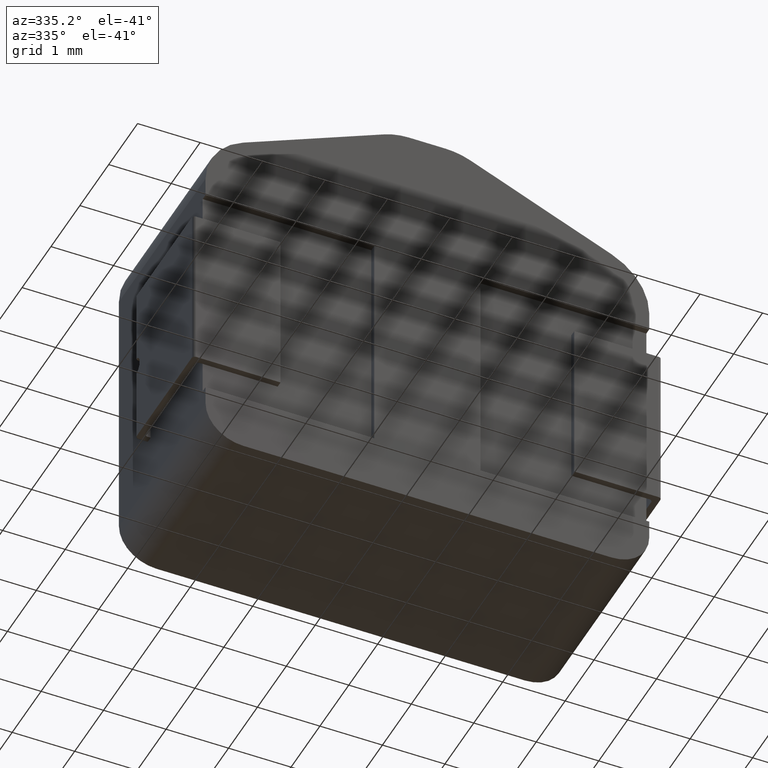
[diagram: clean part render]
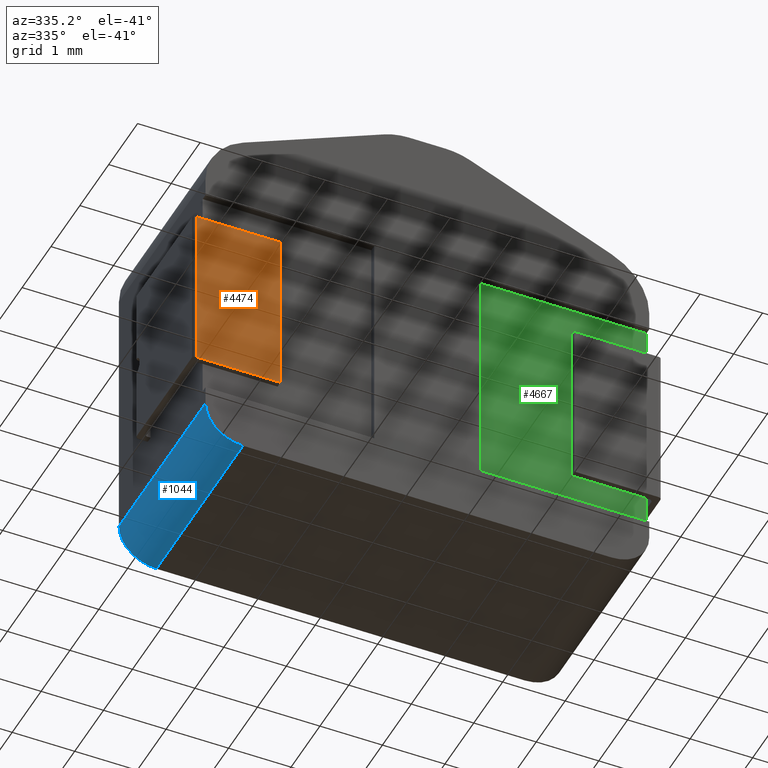
[diagram: same view with three faces highlighted in distinct colors, each labeled with its STEP entity id]
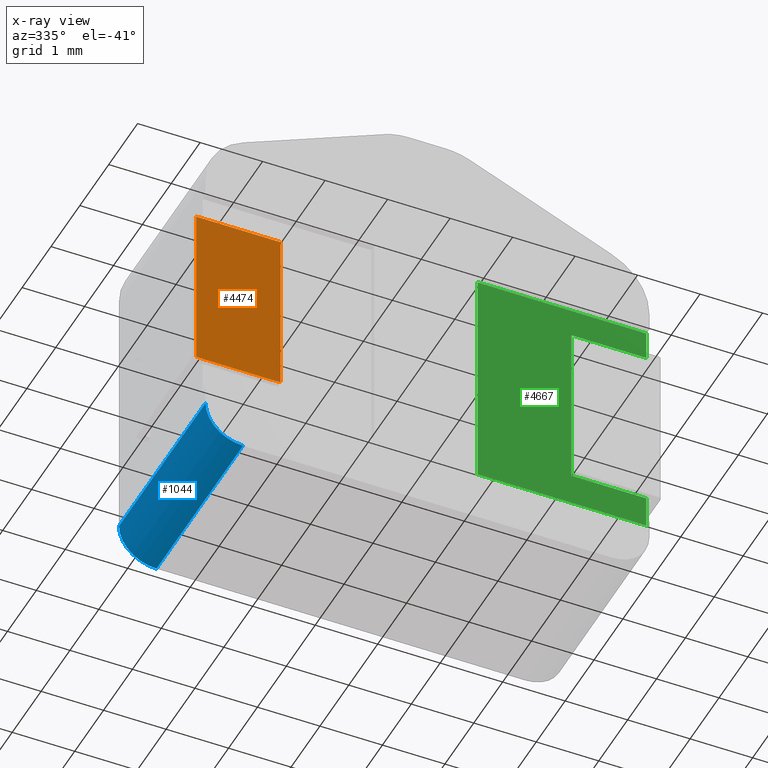
[diagram: x-ray of the same camera — body ghosted, the three highlighted faces saturated]
A machine part, auxiliary view with three faces highlighted in distinct colors.
The next image is the same camera in x-ray (body ghosted, the three faces saturated) — at least one of them is partly hidden behind the body in this view.
Their STEP definitions:

[orange] entity #4474 — the highlighted planar face has unit normal (0, -1, 0).
#47 = ORIENTED_EDGE ( 'NONE', *, *, #164, .T. ) ;
#164 = EDGE_CURVE ( 'NONE', #2870, #2147, #4571, .T. ) ;
#507 = AXIS2_PLACEMENT_3D ( 'NONE', #2388, #3139, #850 ) ;
#515 = EDGE_CURVE ( 'NONE', #1594, #4722, #4800, .T. ) ;
#774 = DIRECTION ( 'NONE',  ( 1.000000000000000000, 8.597901537443017800E-033, 0.0000000000000000000 ) ) ;
#810 = ORIENTED_EDGE ( 'NONE', *, *, #2755, .T. ) ;
#850 = DIRECTION ( 'NONE',  ( 1.000000000000000000, 8.597901537443019200E-033, 0.0000000000000000000 ) ) ;
#881 = CARTESIAN_POINT ( 'NONE',  ( 0.05948966275330278700, 1.203706215242022400E-032, -5.140528836854994000 ) ) ;
#895 = PLANE ( 'NONE',  #507 ) ;
#974 = DIRECTION ( 'NONE',  ( -0.0000000000000000000, -0.0000000000000000000, -1.000000000000000000 ) ) ;
#1223 = CARTESIAN_POINT ( 'NONE',  ( 0.05948966275330278700, 1.203706215242022400E-032, -5.140528836854994000 ) ) ;
#1228 = DIRECTION ( 'NONE',  ( 1.000000000000000000, 8.597901537443017800E-033, 0.0000000000000000000 ) ) ;
#1475 = CARTESIAN_POINT ( 'NONE',  ( -1.290510337246697300, 4.298950768721501900E-034, -5.140528836854994000 ) ) ;
#1487 = VECTOR ( 'NONE', #974, 1000.000000000000000 ) ;
#1594 = VERTEX_POINT ( 'NONE', #1223 ) ;
#2147 = VERTEX_POINT ( 'NONE', #1475 ) ;
#2302 = ORIENTED_EDGE ( 'NONE', *, *, #515, .T. ) ;
#2316 = CARTESIAN_POINT ( 'NONE',  ( -1.340510337246697100, 0.0000000000000000000, -2.440528836854994200 ) ) ;
#2388 = CARTESIAN_POINT ( 'NONE',  ( -1.340510337246697100, 0.0000000000000000000, -5.140528836854994000 ) ) ;
#2397 = VECTOR ( 'NONE', #1228, 1000.000000000000000 ) ;
#2413 = CARTESIAN_POINT ( 'NONE',  ( -1.290510337246697300, 4.298950768721501900E-034, -2.440528836854994200 ) ) ;
#2467 = CARTESIAN_POINT ( 'NONE',  ( -1.290510337246697300, 4.298950768721502700E-034, -5.140528836854994000 ) ) ;
#2738 = EDGE_LOOP ( 'NONE', ( #3389, #47, #810, #2302 ) ) ;
#2755 = EDGE_CURVE ( 'NONE', #2147, #1594, #3508, .T. ) ;
#2813 = FACE_OUTER_BOUND ( 'NONE', #2738, .T. ) ;
#2870 = VERTEX_POINT ( 'NONE', #2413 ) ;
#2918 = CARTESIAN_POINT ( 'NONE',  ( 0.05948966275330278700, 1.203706215242022400E-032, -2.440528836854994200 ) ) ;
#3139 = DIRECTION ( 'NONE',  ( 8.597901537443019200E-033, -1.000000000000000000, 0.0000000000000000000 ) ) ;
#3240 = EDGE_CURVE ( 'NONE', #2870, #4722, #3588, .T. ) ;
#3389 = ORIENTED_EDGE ( 'NONE', *, *, #3240, .F. ) ;
#3479 = CARTESIAN_POINT ( 'NONE',  ( -1.340510337246697100, 0.0000000000000000000, -5.140528836854994000 ) ) ;
#3508 = LINE ( 'NONE', #3479, #2397 ) ;
#3588 = LINE ( 'NONE', #2316, #4272 ) ;
#3711 = VECTOR ( 'NONE', #4567, 1000.000000000000000 ) ;
#4272 = VECTOR ( 'NONE', #774, 1000.000000000000000 ) ;
#4474 = ADVANCED_FACE ( 'NONE', ( #2813 ), #895, .T. ) ;
#4567 = DIRECTION ( 'NONE',  ( 0.0000000000000000000, 0.0000000000000000000, 1.000000000000000000 ) ) ;
#4571 = LINE ( 'NONE', #2467, #1487 ) ;
#4722 = VERTEX_POINT ( 'NONE', #2918 ) ;
#4800 = LINE ( 'NONE', #881, #3711 ) ;

[blue] entity #1044 — the highlighted cylindrical surface (partial cylindrical patch) has radius 0.6 mm, axis along (0, -1, 0).
#16 = VECTOR ( 'NONE', #19, 1000.000000000000000 ) ;
#19 = DIRECTION ( 'NONE',  ( 0.0000000000000000000, -1.000000000000000000, 0.0000000000000000000 ) ) ;
#132 = AXIS2_PLACEMENT_3D ( 'NONE', #4760, #299, #2913 ) ;
#299 = DIRECTION ( 'NONE',  ( 0.0000000000000000000, -1.000000000000000000, 0.0000000000000000000 ) ) ;
#352 = CARTESIAN_POINT ( 'NONE',  ( -1.140510337246697100, 3.000000000000000000, -5.977093836854994200 ) ) ;
#381 = CIRCLE ( 'NONE', #4768, 0.5999999999999998700 ) ;
#662 = DIRECTION ( 'NONE',  ( -0.0000000000000000000, 1.000000000000000000, -0.0000000000000000000 ) ) ;
#687 = EDGE_LOOP ( 'NONE', ( #3837, #3224, #1691, #2994 ) ) ;
#830 = CARTESIAN_POINT ( 'NONE',  ( -0.5405103372466971700, 3.000000000000000000, -5.977093836854994200 ) ) ;
#888 = VECTOR ( 'NONE', #3631, 1000.000000000000000 ) ;
#1044 = ADVANCED_FACE ( 'NONE', ( #1350 ), #1870, .T. ) ;
#1217 = LINE ( 'NONE', #352, #16 ) ;
#1248 = VERTEX_POINT ( 'NONE', #2370 ) ;
#1350 = FACE_OUTER_BOUND ( 'NONE', #687, .T. ) ;
#1431 = CARTESIAN_POINT ( 'NONE',  ( -0.5405103372466973900, 3.000000000000000000, -6.577093836854993800 ) ) ;
#1571 = CIRCLE ( 'NONE', #132, 0.5999999999999998700 ) ;
#1691 = ORIENTED_EDGE ( 'NONE', *, *, #2628, .F. ) ;
#1853 = EDGE_CURVE ( 'NONE', #3102, #4365, #381, .T. ) ;
#1870 = CYLINDRICAL_SURFACE ( 'NONE', #1889, 0.5999999999999998700 ) ;
#1889 = AXIS2_PLACEMENT_3D ( 'NONE', #830, #1972, #3449 ) ;
#1972 = DIRECTION ( 'NONE',  ( 0.0000000000000000000, -1.000000000000000000, 0.0000000000000000000 ) ) ;
#2141 = EDGE_CURVE ( 'NONE', #4365, #1248, #1217, .T. ) ;
#2370 = CARTESIAN_POINT ( 'NONE',  ( -1.140510337246697100, 0.0000000000000000000, -5.977093836854994200 ) ) ;
#2628 = EDGE_CURVE ( 'NONE', #1248, #4393, #1571, .T. ) ;
#2906 = CARTESIAN_POINT ( 'NONE',  ( -0.5405103372466971700, 3.000000000000000000, -5.977093836854994200 ) ) ;
#2913 = DIRECTION ( 'NONE',  ( 0.0000000000000000000, 0.0000000000000000000, -1.000000000000000000 ) ) ;
#2928 = EDGE_CURVE ( 'NONE', #4393, #3102, #4505, .T. ) ;
#2994 = ORIENTED_EDGE ( 'NONE', *, *, #2141, .F. ) ;
#3102 = VERTEX_POINT ( 'NONE', #1431 ) ;
#3224 = ORIENTED_EDGE ( 'NONE', *, *, #2928, .F. ) ;
#3425 = CARTESIAN_POINT ( 'NONE',  ( -0.5405103372466973900, 0.0000000000000000000, -6.577093836854993800 ) ) ;
#3438 = CARTESIAN_POINT ( 'NONE',  ( -1.140510337246697100, 3.000000000000000000, -5.977093836854994200 ) ) ;
#3449 = DIRECTION ( 'NONE',  ( 0.0000000000000000000, 0.0000000000000000000, -1.000000000000000000 ) ) ;
#3631 = DIRECTION ( 'NONE',  ( -0.0000000000000000000, 1.000000000000000000, -0.0000000000000000000 ) ) ;
#3652 = CARTESIAN_POINT ( 'NONE',  ( -0.5405103372466971700, 3.000000000000000000, -6.577093836854993800 ) ) ;
#3837 = ORIENTED_EDGE ( 'NONE', *, *, #1853, .F. ) ;
#4365 = VERTEX_POINT ( 'NONE', #3438 ) ;
#4393 = VERTEX_POINT ( 'NONE', #3425 ) ;
#4505 = LINE ( 'NONE', #3652, #888 ) ;
#4703 = DIRECTION ( 'NONE',  ( 0.0000000000000000000, 0.0000000000000000000, -1.000000000000000000 ) ) ;
#4760 = CARTESIAN_POINT ( 'NONE',  ( -0.5405103372466971700, 0.0000000000000000000, -5.977093836854994200 ) ) ;
#4768 = AXIS2_PLACEMENT_3D ( 'NONE', #2906, #662, #4703 ) ;

[green] entity #4667 — the highlighted planar face has unit normal (0, -1, -0).
#99 = VERTEX_POINT ( 'NONE', #2084 ) ;
#158 = ORIENTED_EDGE ( 'NONE', *, *, #3917, .F. ) ;
#205 = VECTOR ( 'NONE', #2313, 1000.000000000000000 ) ;
#242 = CARTESIAN_POINT ( 'NONE',  ( 5.959489662753303400, 0.1000000000000000100, -1.968274978583510500 ) ) ;
#407 = EDGE_CURVE ( 'NONE', #2222, #2762, #3308, .T. ) ;
#452 = DIRECTION ( 'NONE',  ( 1.000000000000000000, -0.0000000000000000000, -1.606225440719265900E-016 ) ) ;
#753 = EDGE_CURVE ( 'NONE', #2327, #99, #2292, .T. ) ;
#786 = ORIENTED_EDGE ( 'NONE', *, *, #4366, .F. ) ;
#992 = VECTOR ( 'NONE', #3329, 1000.000000000000000 ) ;
#1028 = CARTESIAN_POINT ( 'NONE',  ( 3.259489662753303200, 0.1000000000000000100, -5.668274978583510500 ) ) ;
#1029 = ORIENTED_EDGE ( 'NONE', *, *, #1404, .F. ) ;
#1032 = CARTESIAN_POINT ( 'NONE',  ( 5.959489662753303400, 0.1000000000000000100, -5.668274978583510500 ) ) ;
#1048 = VECTOR ( 'NONE', #452, 1000.000000000000000 ) ;
#1199 = CARTESIAN_POINT ( 'NONE',  ( 4.759489662753303200, 0.1000000000000000100, -5.140528836854994000 ) ) ;
#1216 = AXIS2_PLACEMENT_3D ( 'NONE', #3553, #2442, #2821 ) ;
#1399 = CARTESIAN_POINT ( 'NONE',  ( 5.959489662753303400, 0.1000000000000000100, -2.440528836854994200 ) ) ;
#1404 = EDGE_CURVE ( 'NONE', #99, #4142, #2697, .T. ) ;
#1447 = CARTESIAN_POINT ( 'NONE',  ( 5.959489662753303400, 0.1000000000000000100, -1.968274978583510500 ) ) ;
#1467 = VERTEX_POINT ( 'NONE', #1399 ) ;
#1726 = CARTESIAN_POINT ( 'NONE',  ( 6.059489662753303000, 0.1000000000000000100, -5.140528836854994000 ) ) ;
#1782 = EDGE_CURVE ( 'NONE', #2762, #1467, #3898, .T. ) ;
#1953 = CARTESIAN_POINT ( 'NONE',  ( 5.959489662753303400, 0.1000000000000000100, -1.968274978583510500 ) ) ;
#2045 = LINE ( 'NONE', #1447, #1048 ) ;
#2084 = CARTESIAN_POINT ( 'NONE',  ( 5.959489662753303400, 0.1000000000000000100, -5.668274978583510500 ) ) ;
#2222 = VERTEX_POINT ( 'NONE', #1199 ) ;
#2257 = EDGE_CURVE ( 'NONE', #4142, #2606, #3229, .T. ) ;
#2292 = LINE ( 'NONE', #2917, #992 ) ;
#2313 = DIRECTION ( 'NONE',  ( 0.0000000000000000000, 0.0000000000000000000, 1.000000000000000000 ) ) ;
#2327 = VERTEX_POINT ( 'NONE', #3897 ) ;
#2349 = VECTOR ( 'NONE', #2945, 1000.000000000000000 ) ;
#2428 = CARTESIAN_POINT ( 'NONE',  ( 6.059489662753303000, 0.1000000000000000100, -2.440528836854994200 ) ) ;
#2442 = DIRECTION ( 'NONE',  ( 0.0000000000000000000, -1.000000000000000000, -0.0000000000000000000 ) ) ;
#2490 = ORIENTED_EDGE ( 'NONE', *, *, #407, .T. ) ;
#2503 = ORIENTED_EDGE ( 'NONE', *, *, #2257, .F. ) ;
#2606 = VERTEX_POINT ( 'NONE', #4420 ) ;
#2645 = VERTEX_POINT ( 'NONE', #1953 ) ;
#2697 = LINE ( 'NONE', #1032, #2349 ) ;
#2700 = CARTESIAN_POINT ( 'NONE',  ( 4.759489662753303200, 0.1000000000000000100, -5.140528836854994000 ) ) ;
#2762 = VERTEX_POINT ( 'NONE', #3444 ) ;
#2798 = ORIENTED_EDGE ( 'NONE', *, *, #753, .F. ) ;
#2821 = DIRECTION ( 'NONE',  ( -0.0000000000000000000, 0.0000000000000000000, -1.000000000000000000 ) ) ;
#2917 = CARTESIAN_POINT ( 'NONE',  ( 5.959489662753303400, 0.1000000000000000100, -1.968274978583510500 ) ) ;
#2945 = DIRECTION ( 'NONE',  ( -1.000000000000000000, 0.0000000000000000000, 0.0000000000000000000 ) ) ;
#2981 = ORIENTED_EDGE ( 'NONE', *, *, #1782, .T. ) ;
#3118 = DIRECTION ( 'NONE',  ( 0.0000000000000000000, 0.0000000000000000000, 1.000000000000000000 ) ) ;
#3123 = VECTOR ( 'NONE', #4313, 1000.000000000000000 ) ;
#3189 = PLANE ( 'NONE',  #1216 ) ;
#3229 = LINE ( 'NONE', #4201, #3803 ) ;
#3308 = LINE ( 'NONE', #2700, #205 ) ;
#3329 = DIRECTION ( 'NONE',  ( 0.0000000000000000000, 0.0000000000000000000, -1.000000000000000000 ) ) ;
#3337 = VECTOR ( 'NONE', #4291, 1000.000000000000000 ) ;
#3444 = CARTESIAN_POINT ( 'NONE',  ( 4.759489662753303200, 0.1000000000000000100, -2.440528836854994200 ) ) ;
#3540 = VECTOR ( 'NONE', #3954, 1000.000000000000000 ) ;
#3553 = CARTESIAN_POINT ( 'NONE',  ( 4.818979325506606200, 0.1000000000000000100, 0.0000000000000000000 ) ) ;
#3661 = EDGE_LOOP ( 'NONE', ( #2798, #158, #2490, #2981, #4004, #786, #2503, #1029 ) ) ;
#3802 = FACE_OUTER_BOUND ( 'NONE', #3661, .T. ) ;
#3803 = VECTOR ( 'NONE', #3118, 1000.000000000000000 ) ;
#3897 = CARTESIAN_POINT ( 'NONE',  ( 5.959489662753303400, 0.1000000000000000100, -5.140528836854994000 ) ) ;
#3898 = LINE ( 'NONE', #2428, #3540 ) ;
#3917 = EDGE_CURVE ( 'NONE', #2222, #2327, #4106, .T. ) ;
#3954 = DIRECTION ( 'NONE',  ( 1.000000000000000000, -0.0000000000000000000, -0.0000000000000000000 ) ) ;
#4004 = ORIENTED_EDGE ( 'NONE', *, *, #4615, .F. ) ;
#4106 = LINE ( 'NONE', #1726, #3123 ) ;
#4142 = VERTEX_POINT ( 'NONE', #1028 ) ;
#4201 = CARTESIAN_POINT ( 'NONE',  ( 3.259489662753303200, 0.1000000000000000100, -1.968274978583510100 ) ) ;
#4291 = DIRECTION ( 'NONE',  ( 0.0000000000000000000, 0.0000000000000000000, -1.000000000000000000 ) ) ;
#4313 = DIRECTION ( 'NONE',  ( 1.000000000000000000, -0.0000000000000000000, -0.0000000000000000000 ) ) ;
#4366 = EDGE_CURVE ( 'NONE', #2606, #2645, #2045, .T. ) ;
#4420 = CARTESIAN_POINT ( 'NONE',  ( 3.259489662753303200, 0.1000000000000000100, -1.968274978583510100 ) ) ;
#4615 = EDGE_CURVE ( 'NONE', #2645, #1467, #4658, .T. ) ;
#4658 = LINE ( 'NONE', #242, #3337 ) ;
#4667 = ADVANCED_FACE ( 'NONE', ( #3802 ), #3189, .T. ) ;